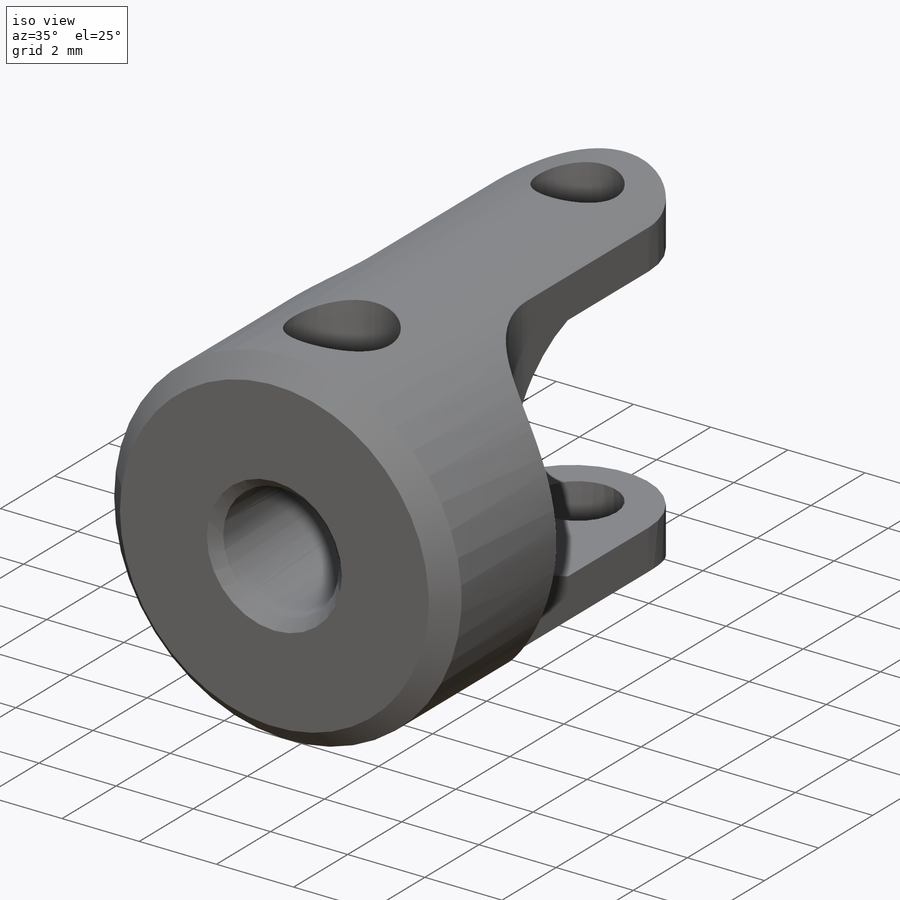
[diagram: iso view]
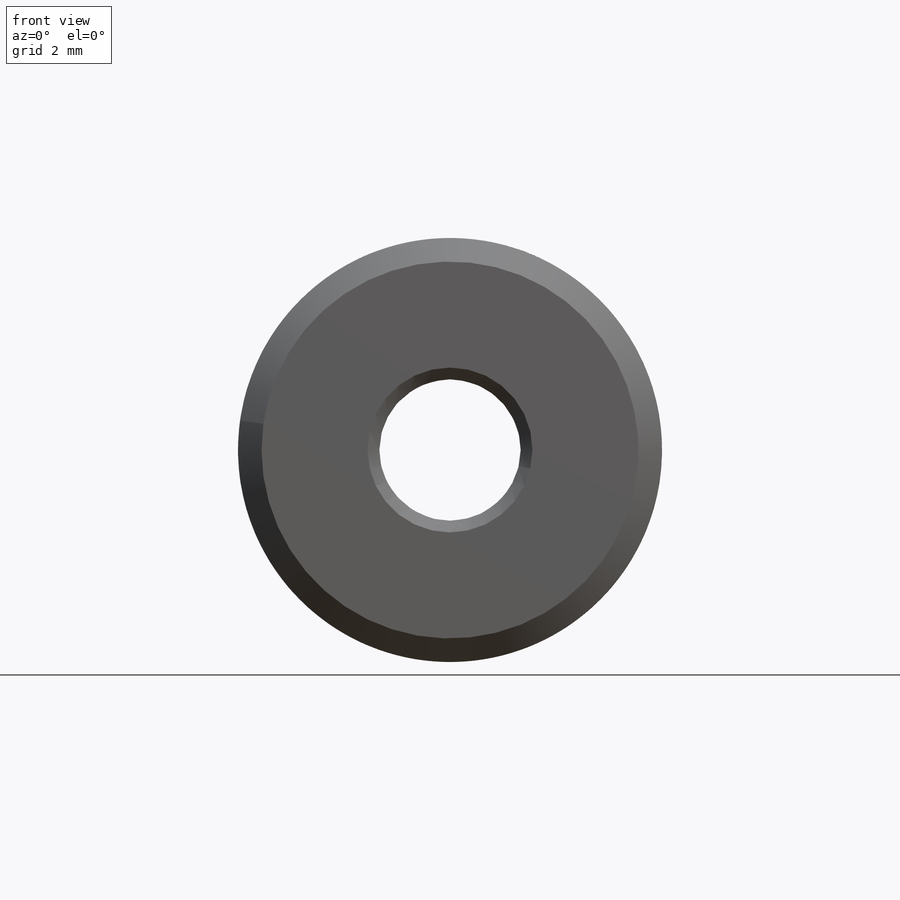
[diagram: front view]
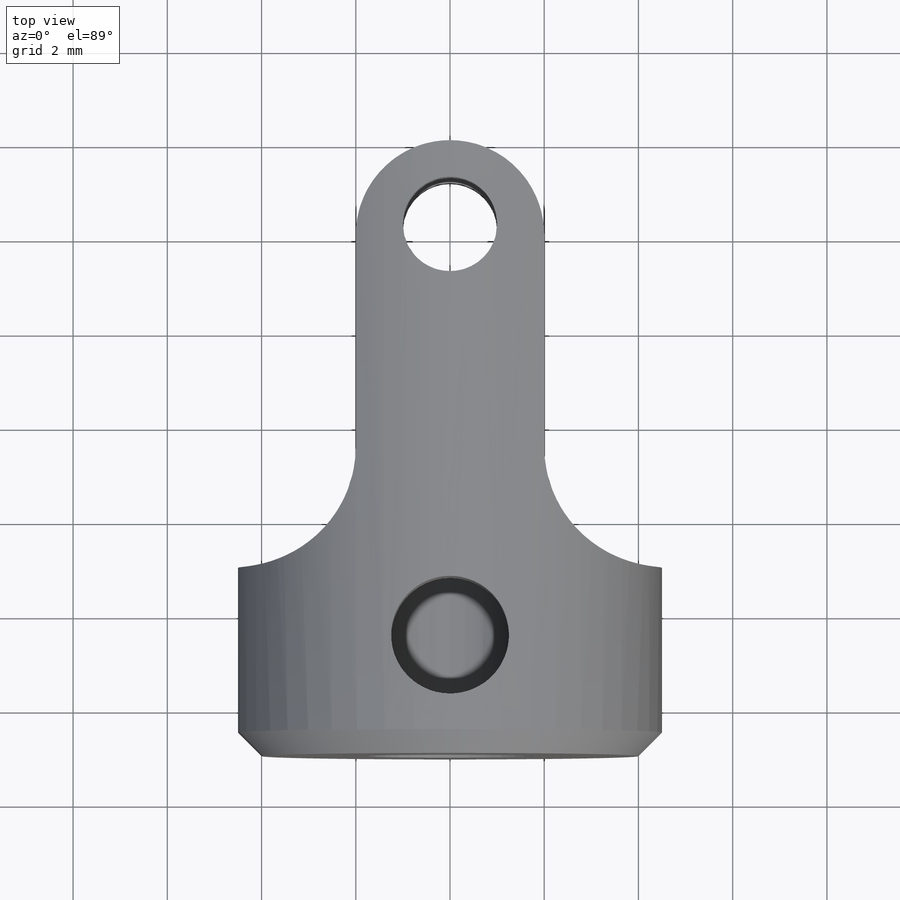
[diagram: top view]
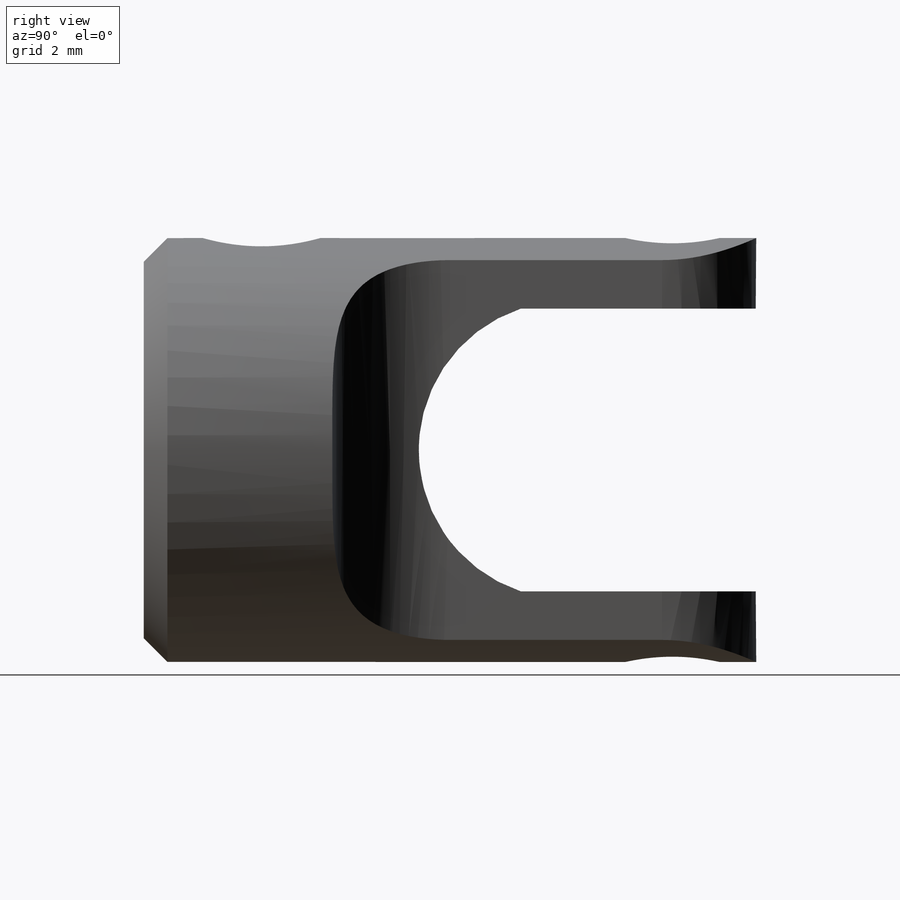
[diagram: right view]
SOLIDWORKS PART (.sldprt)
format: sldprt  version: not decoded by parser v0  size: 588,288 bytes
history: native  units: mm
features: sketch x8, plane x4, cut_extrude x3, hole x2, material x1, extrude x1, chamfer x1, thread x1 (+8 scaffold rows collapsed)
feature tree (29):
  scaffold x8  (default folders/planes/origin — collapsed)
  material  "不锈钢 (铁素体)"
  plane  "前视基准面"
  plane  "上视基准面"
  plane  "右视基准面"
  sketch  "草图1"  dims[D1=~13.210985mm]
  extrude  "凸台-拉伸1"  Depth=13mm
  sketch  "草图2"  dims[D1=2.0mm D2=4.5mm]
  cut_extrude  "切除-拉伸1"  Depth=13mm
  sketch  "草图3"  dims[D1=3.0mm D2=5.0mm]
  cut_extrude  "切除-拉伸2"  Depth=13mm
  sketch  "草图4"  dims[D1=1.5mm]
  cut_extrude  "切除-拉伸3"  Depth=13mm
  hole  "打孔尺寸根据开槽半沉头木螺钉的类型1"  [1 undecoded]
  sketch  "草图6"
  sketch  "草图5"  dims[hole-wizard template sketch: 54 standard entries collapsed; hole parameters kept: c17.通孔孔直径=3.0mm c17.通孔孔深度=13.0mm c17.近端锥形沉头孔直径=3.5mm c17.D4=~3.666174mm c17.近端锥形沉头孔角度=90.0deg]
  chamfer  "倒角1"  Distance=0.5mm Angle=45deg
  plane  "基准面1"  Offset=4.5mm
  hole  "M3 螺纹孔1"  [1 undecoded]
  sketch  "草图8"  dims[D1=2.5mm]
  sketch  "草图7"  dims[hole-wizard template sketch: 60 standard entries collapsed; hole parameters kept: c18.通孔螺纹孔钻头深度=3.0mm]
  thread  "孔螺蚊线2"  Diameter=3mm  [1 undecoded]
decode coverage: 13 of 16 modeling features carry decoded parameters
note: ~ marks probable driven/reference dimensions
note: 3 parameter values undecoded
note: suppression state not decoded; provenance and decode notes live in map.json
